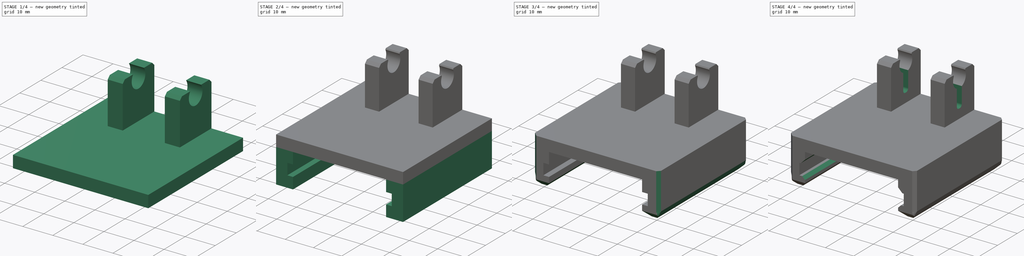
[diagram: build sequence overview — one tinted view per stage of 4, left to right]
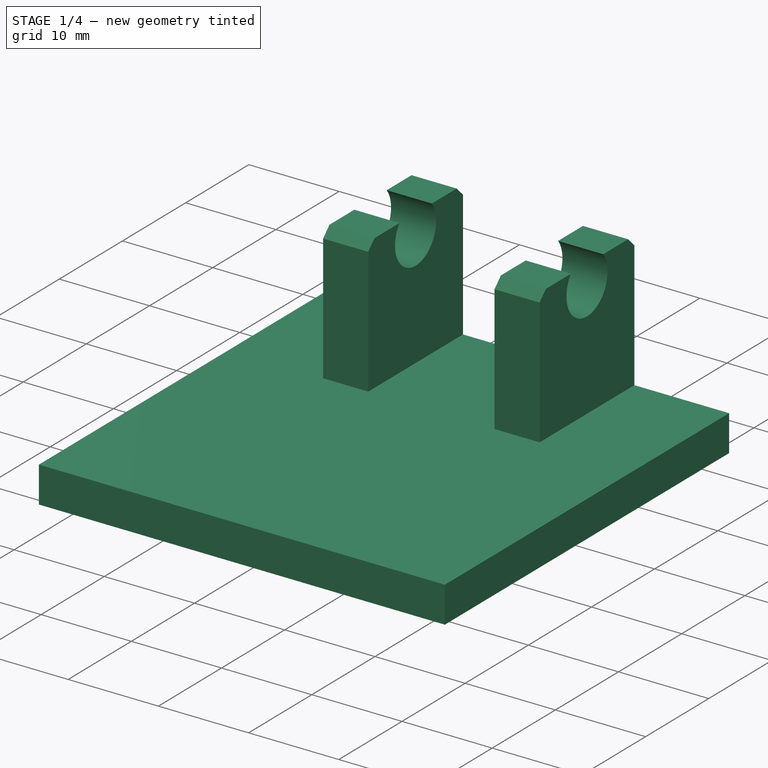
[diagram: stage 1 of 4 — iso view after this stage's code; geometry added in this stage tinted green]
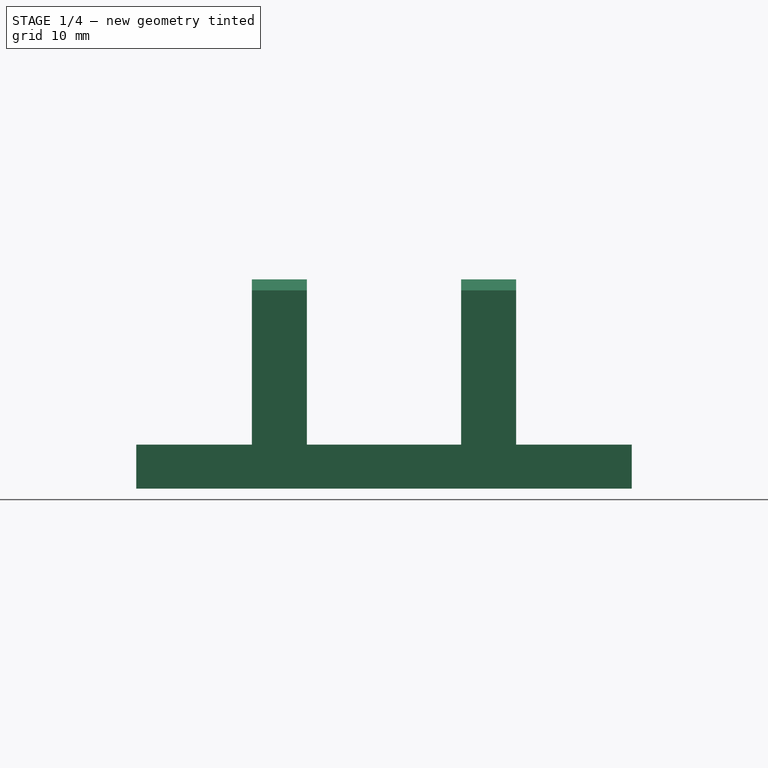
[diagram: stage 1 of 4 — front view after this stage's code; geometry added in this stage tinted green]
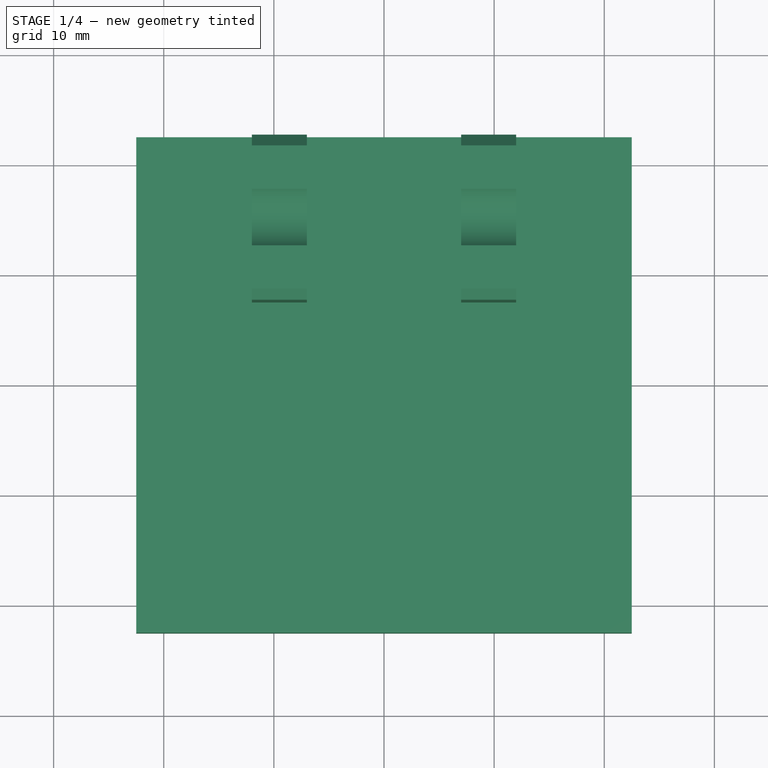
[diagram: stage 1 of 4 — top view after this stage's code; geometry added in this stage tinted green]
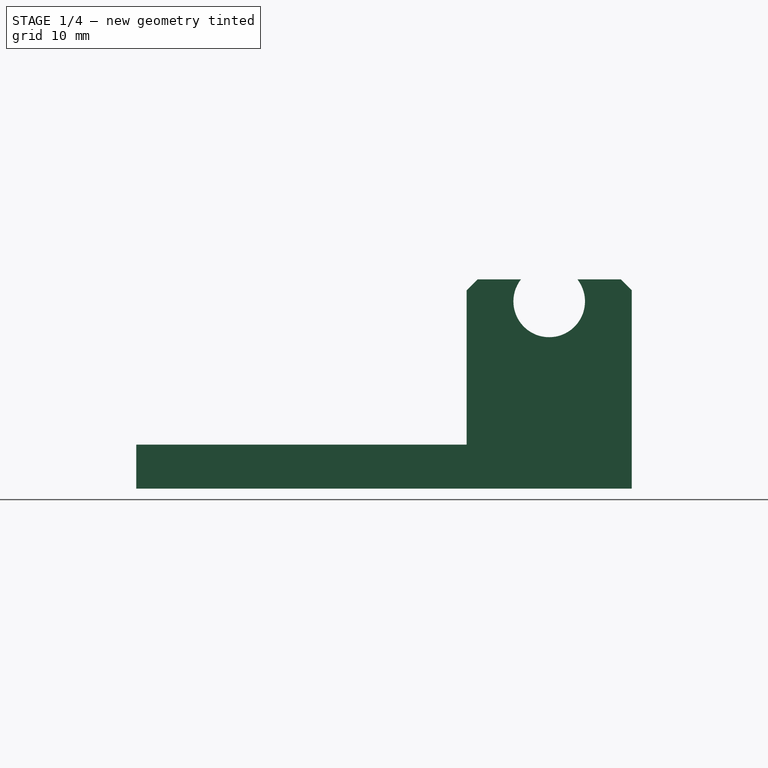
[diagram: stage 1 of 4 — right view after this stage's code; geometry added in this stage tinted green]
FCSTD DOCUMENT  (FreeCAD 0.16R)
Label: RemoteHolder
License: All rights reserved
LicenseURL: http://en.wikipedia.org/wiki/All_rights_reserved
objects: PartDesign::Chamfer×7, Sketcher::SketchObject×6, PartDesign::Pad×3, PartDesign::Pocket×3, PartDesign::Fillet×1
note: 26 computed .brp shape members not serialized (recipe doc carries the construction recipe); baked Part::Feature solids carry a one-line shape summary decoded from their .brp

FEATURE [Sketcher::SketchObject] Sketch
  sketch-geometry (4):
    g0: LineSegment StartX=-22.5 StartY=22.5 StartZ=0 EndX=22.5 EndY=22.5 EndZ=0
    g1: LineSegment StartX=22.5 StartY=22.5 StartZ=0 EndX=22.5 EndY=-22.5 EndZ=0
    g2: LineSegment StartX=22.5 StartY=-22.5 StartZ=0 EndX=-22.5 EndY=-22.5 EndZ=0
    g3: LineSegment StartX=-22.5 StartY=-22.5 StartZ=0 EndX=-22.5 EndY=22.5 EndZ=0
  constraints (12):
    c: Coincident(g0,g1)
    c: Coincident(g1,g2)
    c: Coincident(g2,g3)
    c: Coincident(g3,g0)
    c: Horizontal(g0)
    c: Horizontal(g2)
    c: Vertical(g1)
    c: Vertical(g3)
    c: Symmetric(g0,g0,g-2)
    c: Symmetric(g0,g2,g-1)
    c: Distance(g0) = 45
    c: Distance(g1) = 45
FEATURE [PartDesign::Pad] Pad
  Length = 4
  Length2 = 100
  Sketch = -> Sketch
  Type = 0
FEATURE [Sketcher::SketchObject] Sketch001
  ExternalGeometry = -> [Pad]
  Placement = pos=(0,0,4) rot=(0,0,1;0rad)
  Support = -> Pad [Face6]
  sketch-geometry (8):
    g0: LineSegment StartX=-12 StartY=7.5 StartZ=0 EndX=-7 EndY=7.5 EndZ=0
    g1: LineSegment StartX=-7 StartY=7.5 StartZ=0 EndX=-7 EndY=22.5 EndZ=0
    g2: LineSegment StartX=-7 StartY=22.5 StartZ=0 EndX=-12 EndY=22.5 EndZ=0
    g3: LineSegment StartX=-12 StartY=22.5 StartZ=0 EndX=-12 EndY=7.5 EndZ=0
    g4: LineSegment StartX=7 StartY=22.5 StartZ=0 EndX=12 EndY=22.5 EndZ=0
    g5: LineSegment StartX=12 StartY=22.5 StartZ=0 EndX=12 EndY=7.5 EndZ=0
    g6: LineSegment StartX=12 StartY=7.5 StartZ=0 EndX=7 EndY=7.5 EndZ=0
    g7: LineSegment StartX=7 StartY=7.5 StartZ=0 EndX=7 EndY=22.5 EndZ=0
  constraints (24):
    c: Coincident(g0,g1)
    c: Coincident(g1,g2)
    c: Coincident(g2,g3)
    c: Coincident(g3,g0)
    c: Horizontal(g0)
    c: Horizontal(g2)
    c: Vertical(g1)
    c: Vertical(g3)
    c: Coincident(g4,g5)
    c: Coincident(g5,g6)
    c: Coincident(g6,g7)
    c: Coincident(g7,g4)
    c: Horizontal(g4)
    c: Horizontal(g6)
    c: Vertical(g5)
    c: Vertical(g7)
    c: PointOnObject(g1,g-3)
    c: PointOnObject(g4,g-3)
    c: Symmetric(g4,g1,g-2)
    c: Symmetric(g4,g2,g-2)
    c: Distance(g7) = 15
    c: Distance(g1) = 15
    c: Distance(g1,g4) = 14
    c: Distance(g2,g4) = 24
FEATURE [PartDesign::Pad] Pad001
  Length = 15
  Length2 = 100
  Sketch = -> Sketch001
  Type = 0
FEATURE [Sketcher::SketchObject] Sketch002
  ExternalGeometry = -> [Pad001]
  Placement = pos=(12,0,0) rot=(0.57735,0.57735,0.57735;2.0944rad)
  Support = -> Pad001 [Face9]
  sketch-geometry (1):
    g0: Circle CenterX=15 CenterY=17 CenterZ=0 NormalX=0 NormalY=0 NormalZ=1 Radius=3.25
  constraints (3):
    c: Radius(g0) = 3.25
    c: DistanceX(g0) = 15
    c: DistanceY(g0) = 17
FEATURE [PartDesign::Pocket] Pocket
  Length = 5
  Sketch = -> Sketch002
  Type = 1
FEATURE [PartDesign::Chamfer] Chamfer
  Base = -> Pocket [Edge34,Edge27,Edge24,Edge46]
  Size = 1
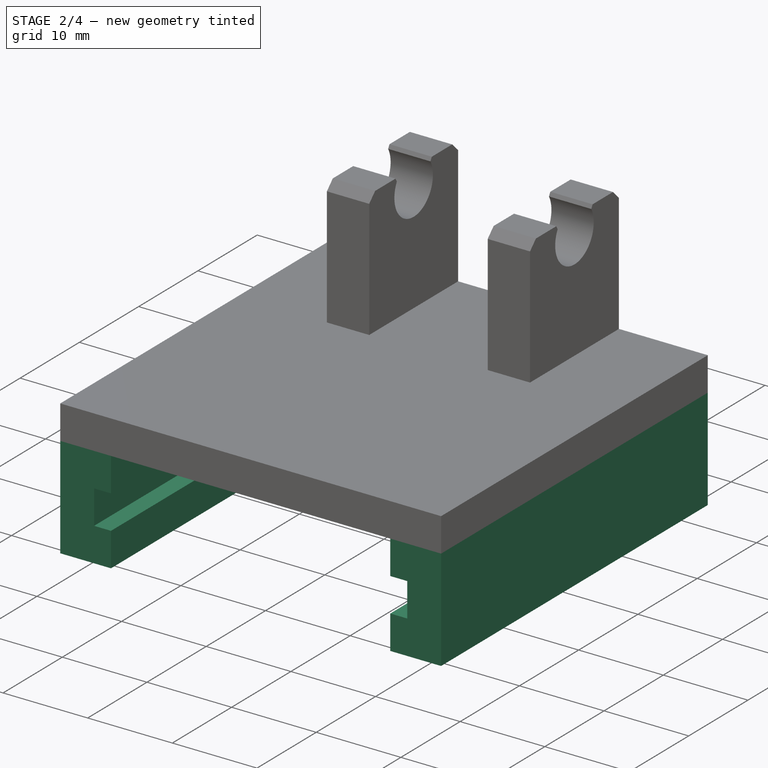
[diagram: stage 2 of 4 — iso view after this stage's code; geometry added in this stage tinted green]
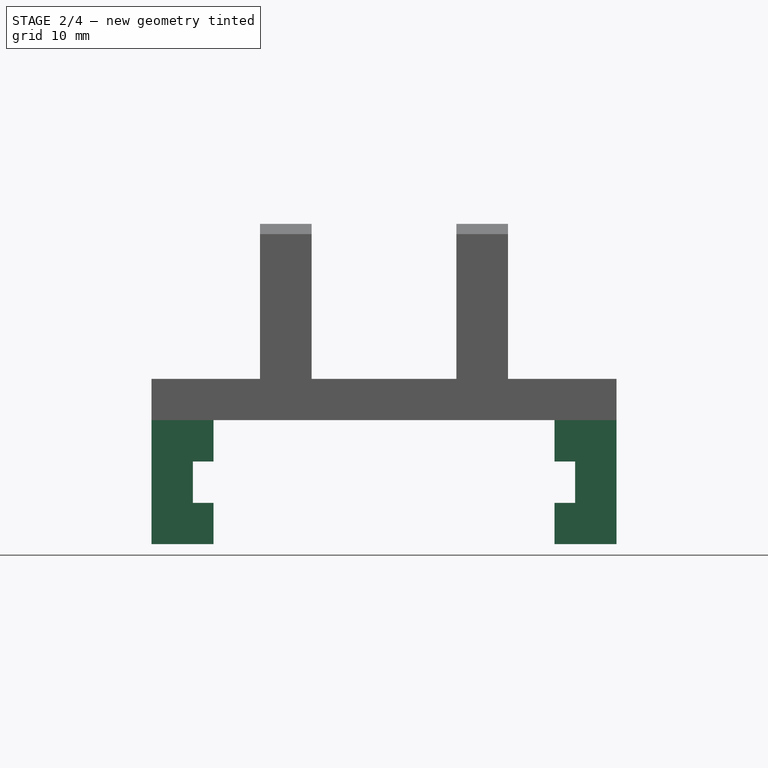
[diagram: stage 2 of 4 — front view after this stage's code; geometry added in this stage tinted green]
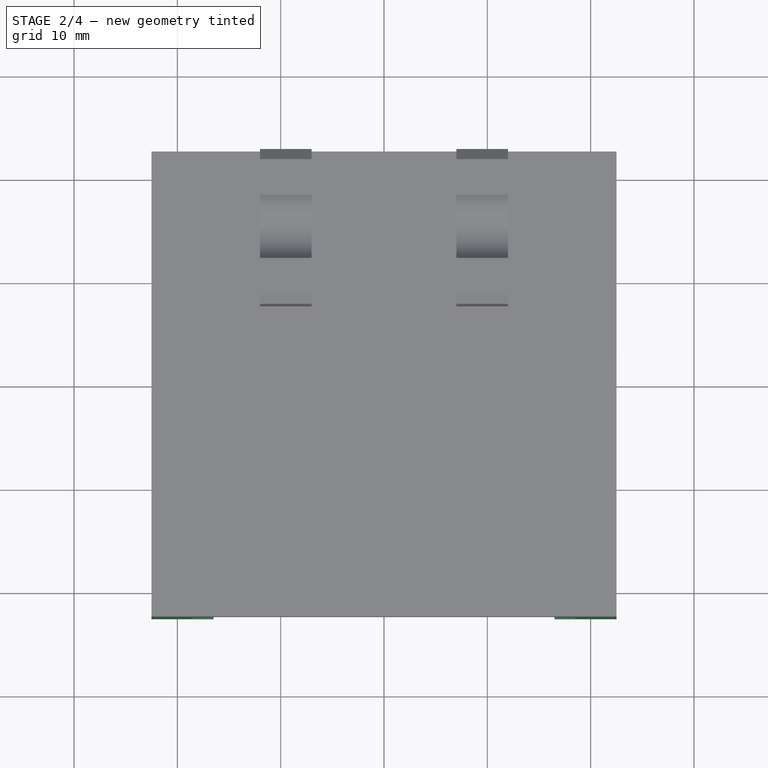
[diagram: stage 2 of 4 — top view after this stage's code; geometry added in this stage tinted green]
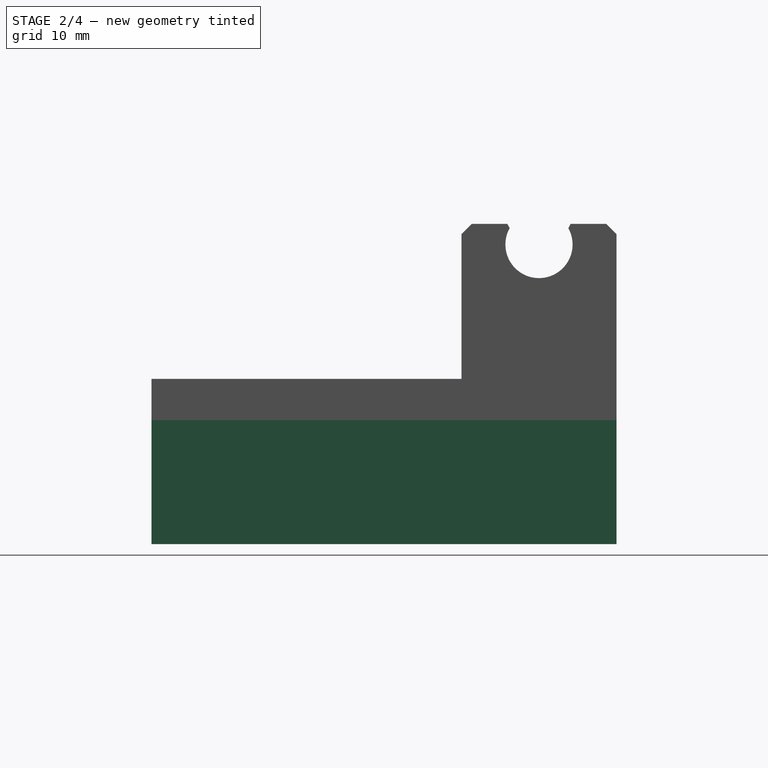
[diagram: stage 2 of 4 — right view after this stage's code; geometry added in this stage tinted green]
FEATURE [PartDesign::Chamfer] Chamfer001
  Base = -> Chamfer [Edge40,Edge36,Edge68,Edge66]
  Size = 0.5
FEATURE [Sketcher::SketchObject] Sketch003
  ExternalGeometry = -> [Chamfer001]
  Placement = pos=(0,0,0) rot=(1,0,0;3.14159rad)
  Support = -> Chamfer001 [Face21]
  sketch-geometry (8):
    g0: LineSegment StartX=-22.5 StartY=22.5 StartZ=0 EndX=-16.5 EndY=22.5 EndZ=0
    g1: LineSegment StartX=-16.5 StartY=22.5 StartZ=0 EndX=-16.5 EndY=-22.5 EndZ=0
    g2: LineSegment StartX=-16.5 StartY=-22.5 StartZ=0 EndX=-22.5 EndY=-22.5 EndZ=0
    g3: LineSegment StartX=-22.5 StartY=-22.5 StartZ=0 EndX=-22.5 EndY=22.5 EndZ=0
    g4: LineSegment StartX=22.5 StartY=22.5 StartZ=0 EndX=16.5 EndY=22.5 EndZ=0
    g5: LineSegment StartX=16.5 StartY=22.5 StartZ=0 EndX=16.5 EndY=-22.5 EndZ=0
    g6: LineSegment StartX=16.5 StartY=-22.5 StartZ=0 EndX=22.5 EndY=-22.5 EndZ=0
    g7: LineSegment StartX=22.5 StartY=-22.5 StartZ=0 EndX=22.5 EndY=22.5 EndZ=0
  constraints (24):
    c: Coincident(g0,g1)
    c: Coincident(g1,g2)
    c: Coincident(g2,g3)
    c: Coincident(g3,g0)
    c: Horizontal(g0)
    c: Horizontal(g2)
    c: Vertical(g1)
    c: Vertical(g3)
    c: Coincident(g4,g5)
    c: Coincident(g5,g6)
    c: Coincident(g6,g7)
    c: Coincident(g7,g4)
    c: Horizontal(g4)
    c: Horizontal(g6)
    c: Vertical(g5)
    c: Vertical(g7)
    c: DistanceX(g5) = 16.5
    c: DistanceX(g1) = -16.5
    c: PointOnObject(g1,g-4)
    c: PointOnObject(g0,g-3)
    c: PointOnObject(g4,g-3)
    c: PointOnObject(g5,g-4)
    c: Coincident(g6,g-5)
    c: Coincident(g2,g-6)
FEATURE [PartDesign::Pad] Pad002
  Length = 12
  Length2 = 100
  Sketch = -> Sketch003
  Type = 0
FEATURE [Sketcher::SketchObject] Sketch004
  ExternalGeometry = -> [Pad002]
  Placement = pos=(0,22.5,0) rot=(0,0.707107,0.707107;3.14159rad)
  Support = -> Pad002 [Face23]
  sketch-geometry (8):
    g0: LineSegment StartX=-18.5 StartY=-8 StartZ=0 EndX=-16.5 EndY=-8 EndZ=0
    g1: LineSegment StartX=-16.5 StartY=-8 StartZ=0 EndX=-16.5 EndY=-4 EndZ=0
    g2: LineSegment StartX=-16.5 StartY=-4 StartZ=0 EndX=-18.5 EndY=-4 EndZ=0
    g3: LineSegment StartX=-18.5 StartY=-4 StartZ=0 EndX=-18.5 EndY=-8 EndZ=0
    g4: LineSegment StartX=16.5 StartY=-4 StartZ=0 EndX=18.5 EndY=-4 EndZ=0
    g5: LineSegment StartX=18.5 StartY=-4 StartZ=0 EndX=18.5 EndY=-8 EndZ=0
    g6: LineSegment StartX=18.5 StartY=-8 StartZ=0 EndX=16.5 EndY=-8 EndZ=0
    g7: LineSegment StartX=16.5 StartY=-8 StartZ=0 EndX=16.5 EndY=-4 EndZ=0
  constraints (24):
    c: Coincident(g0,g1)
    c: Coincident(g1,g2)
    c: Coincident(g2,g3)
    c: Coincident(g3,g0)
    c: Horizontal(g0)
    c: Horizontal(g2)
    c: Vertical(g1)
    c: Vertical(g3)
    c: Coincident(g4,g5)
    c: Coincident(g5,g6)
    c: Coincident(g6,g7)
    c: Coincident(g7,g4)
    c: Horizontal(g4)
    c: Horizontal(g6)
    c: Vertical(g5)
    c: Vertical(g7)
    c: Distance(g4) = 2
    c: Distance(g0) = 2
    c: Distance(g5) = 4
    c: Distance(g3) = 4
    c: DistanceY(g4) = -4
    c: DistanceY(g0) = -8
    c: PointOnObject(g6,g-4)
    c: PointOnObject(g0,g-3)
FEATURE [PartDesign::Pocket] Pocket001
  Length = 5
  Sketch = -> Sketch004
  Type = 1
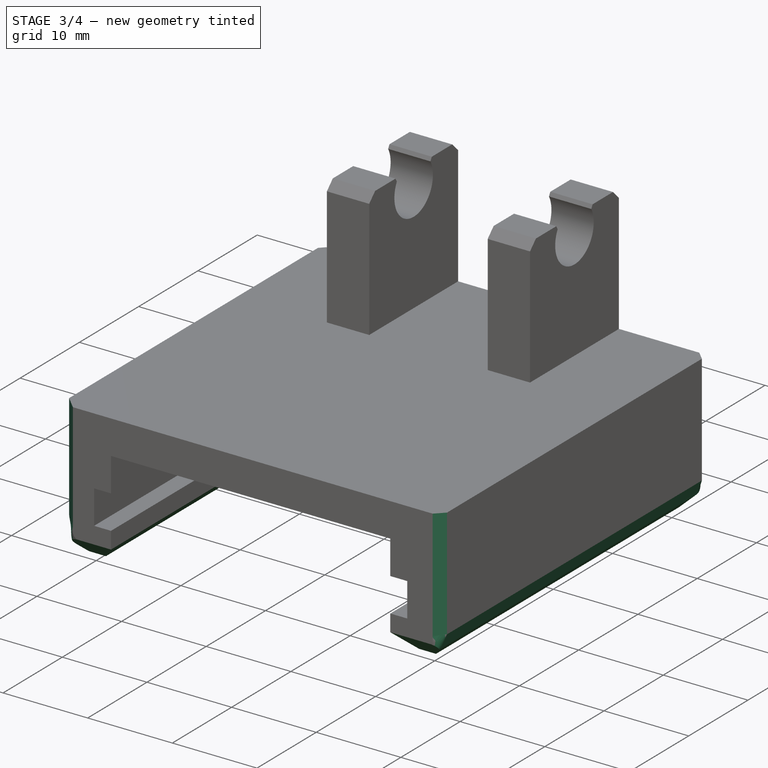
[diagram: stage 3 of 4 — iso view after this stage's code; geometry added in this stage tinted green]
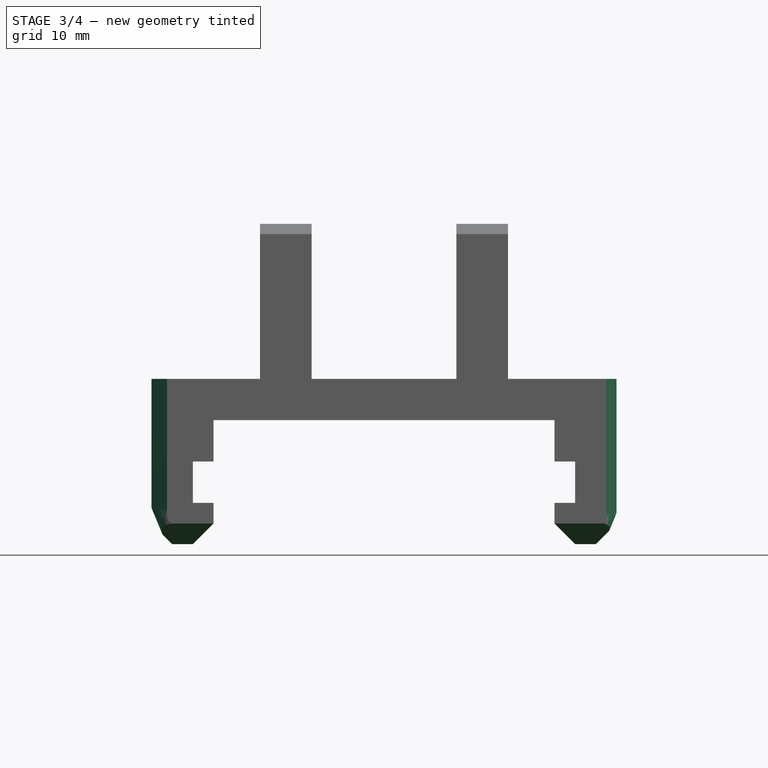
[diagram: stage 3 of 4 — front view after this stage's code; geometry added in this stage tinted green]
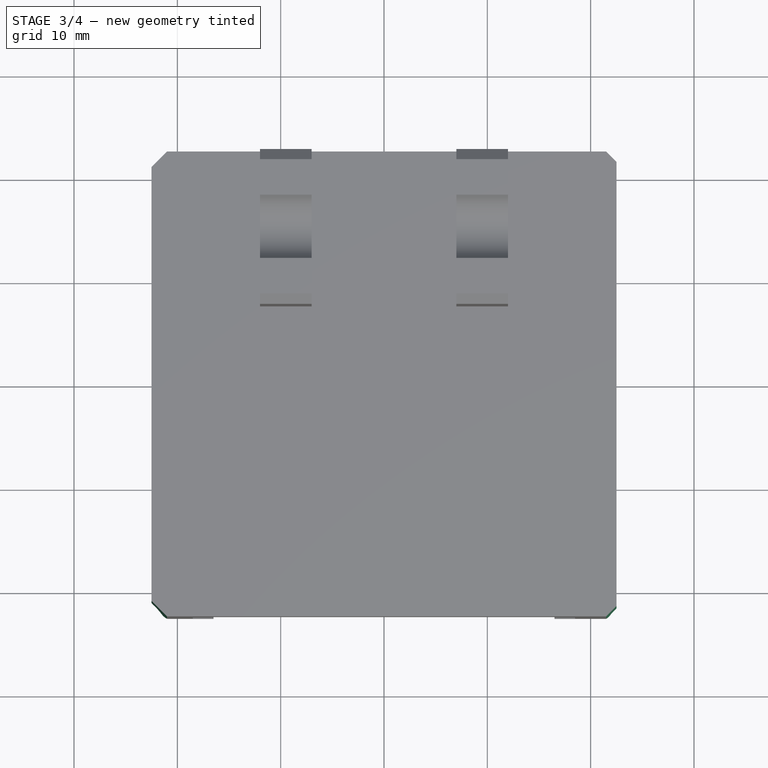
[diagram: stage 3 of 4 — top view after this stage's code; geometry added in this stage tinted green]
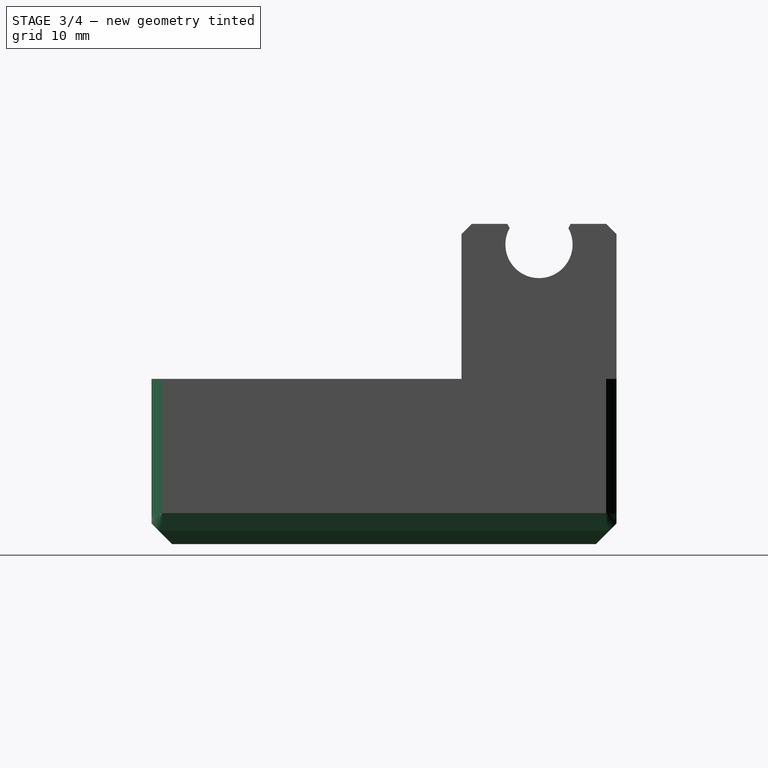
[diagram: stage 3 of 4 — right view after this stage's code; geometry added in this stage tinted green]
FEATURE [PartDesign::Chamfer] Chamfer002
  Base = -> Pocket001 [Edge108,Edge117,Edge78,Edge94,Edge101,Edge123,Edge87,Edge109]
  Size = 2
FEATURE [PartDesign::Chamfer] Chamfer003
  Base = -> Chamfer002 [Edge1,Edge9,Edge10,Edge11]
  Size = 1.5
FEATURE [PartDesign::Chamfer] Chamfer004
  Base = -> Chamfer003 [Edge68,Edge129,Edge78,Edge130]
  Size = 1
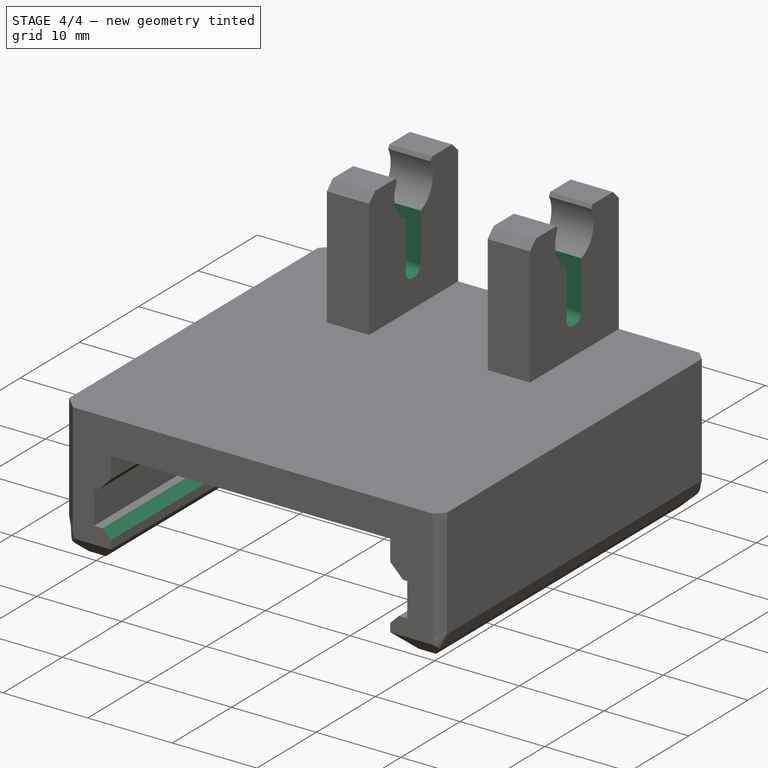
[diagram: stage 4 of 4 — iso view after this stage's code; geometry added in this stage tinted green]
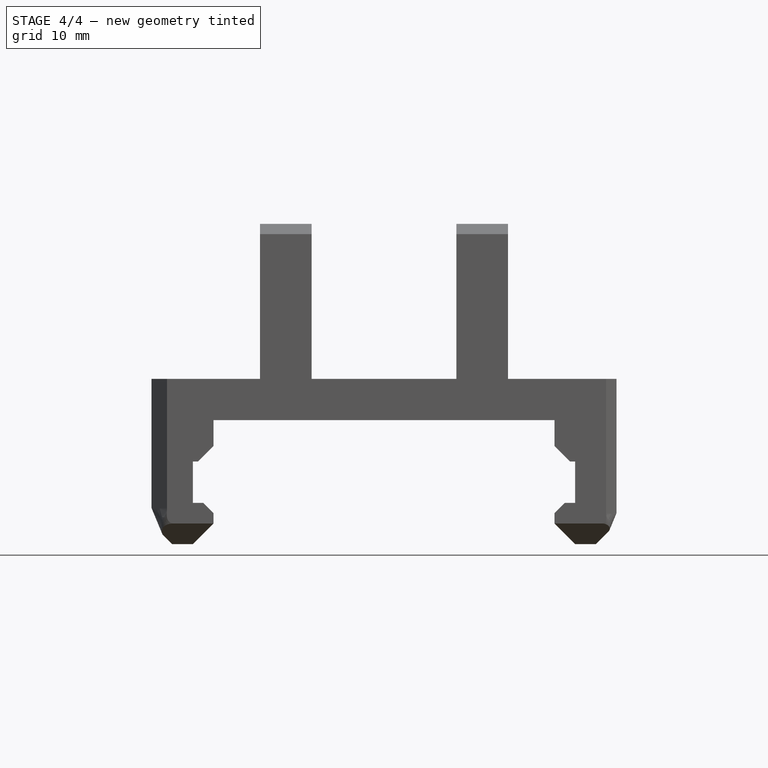
[diagram: stage 4 of 4 — front view after this stage's code; geometry added in this stage tinted green]
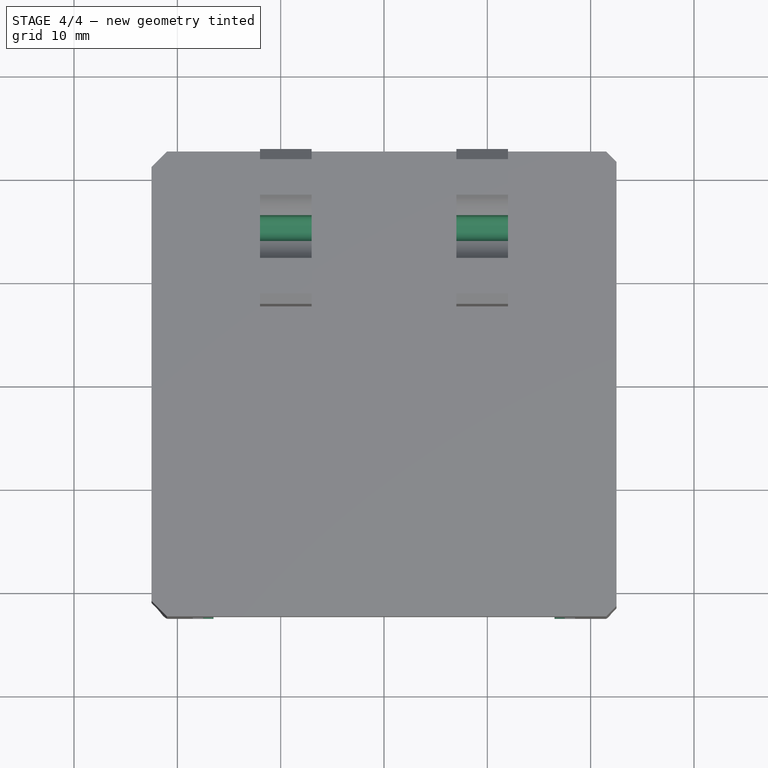
[diagram: stage 4 of 4 — top view after this stage's code; geometry added in this stage tinted green]
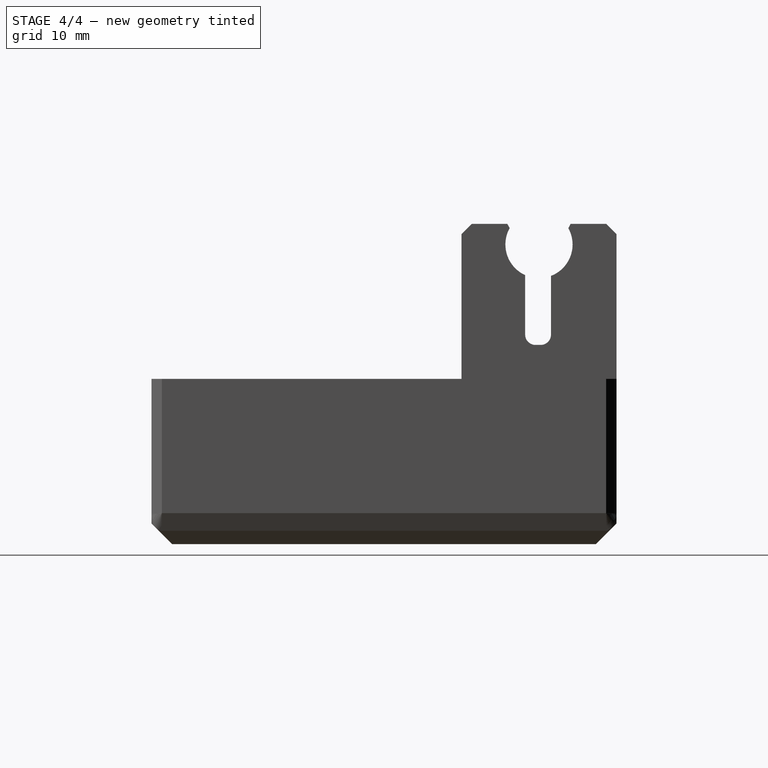
[diagram: stage 4 of 4 — right view after this stage's code; geometry added in this stage tinted green]
FEATURE [PartDesign::Chamfer] Chamfer005
  Base = -> Chamfer004 [Edge129,Edge61]
  Size = 1
FEATURE [Sketcher::SketchObject] Sketch005
  Placement = pos=(12,0,0) rot=(0.57735,0.57735,0.57735;2.0944rad)
  Support = -> Chamfer005 [Face34]
  sketch-geometry (4):
    g0: LineSegment StartX=13.6625 StartY=22.3849 StartZ=0 EndX=16.1625 EndY=22.3849 EndZ=0
    g1: LineSegment StartX=16.1625 StartY=22.3849 StartZ=0 EndX=16.1625 EndY=7.28091 EndZ=0
    g2: LineSegment StartX=16.1625 StartY=7.28091 StartZ=0 EndX=13.6625 EndY=7.28091 EndZ=0
    g3: LineSegment StartX=13.6625 StartY=7.28091 StartZ=0 EndX=13.6625 EndY=22.3849 EndZ=0
  constraints (12):
    c: Coincident(g0,g1)
    c: Coincident(g1,g2)
    c: Coincident(g2,g3)
    c: Coincident(g3,g0)
    c: Horizontal(g0)
    c: Horizontal(g2)
    c: Vertical(g1)
    c: Vertical(g3)
    c: Distance(g0) = 2.5
    c: DistanceX(g1) = 16.1625
    c: DistanceY(g2) = 7.28091
    c: Distance(g3) = 15.104
FEATURE [PartDesign::Pocket] Pocket002
  Length = 5
  Sketch = -> Sketch005
  Type = 1
FEATURE [PartDesign::Fillet] Fillet
  Base = -> Pocket002 [Edge185,Edge195,Edge186,Edge196]
  Radius = 1
FEATURE [PartDesign::Chamfer] Chamfer006
  Base = -> Fillet [Edge192,Edge204]
  Size = 1.5
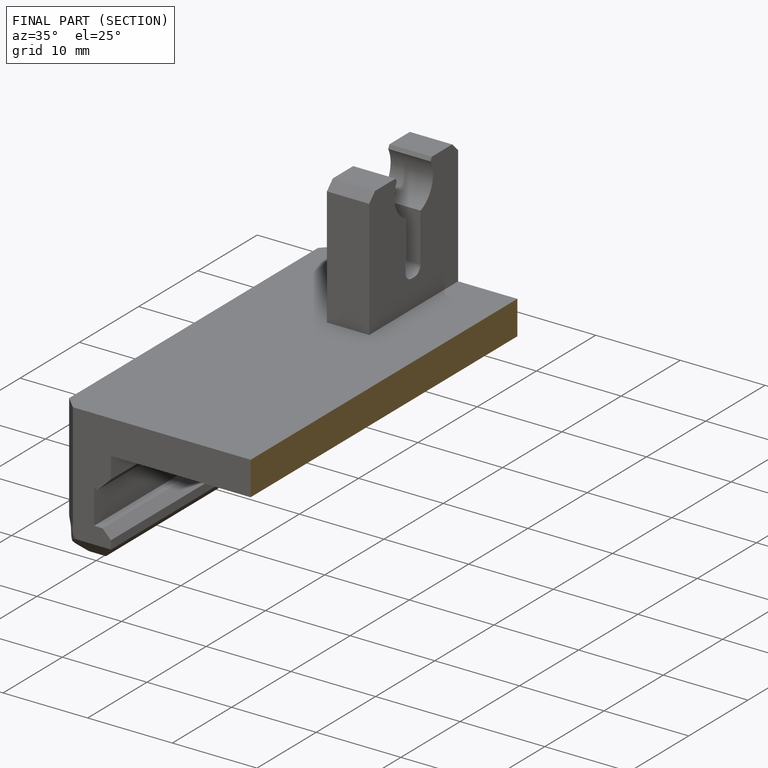
[diagram: finished part — half-section view (interior)]
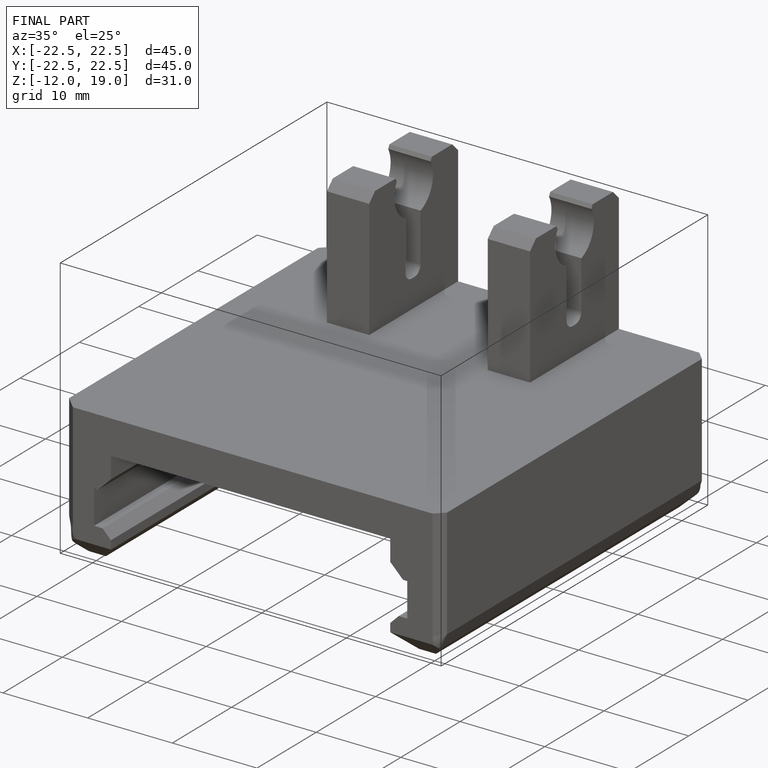
[diagram: finished part — iso view with bounding-box wireframe]
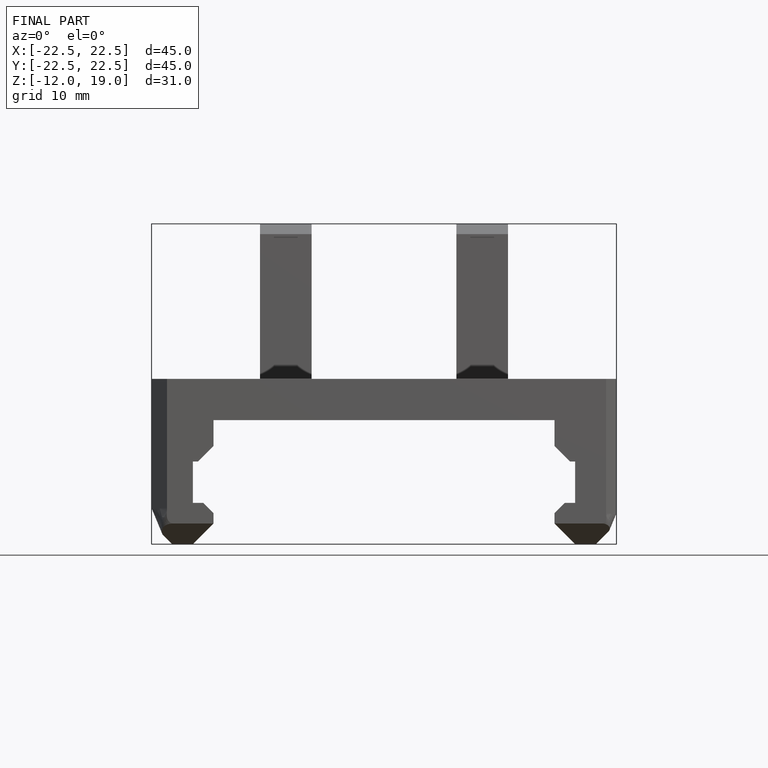
[diagram: finished part — front view with bounding-box wireframe]
